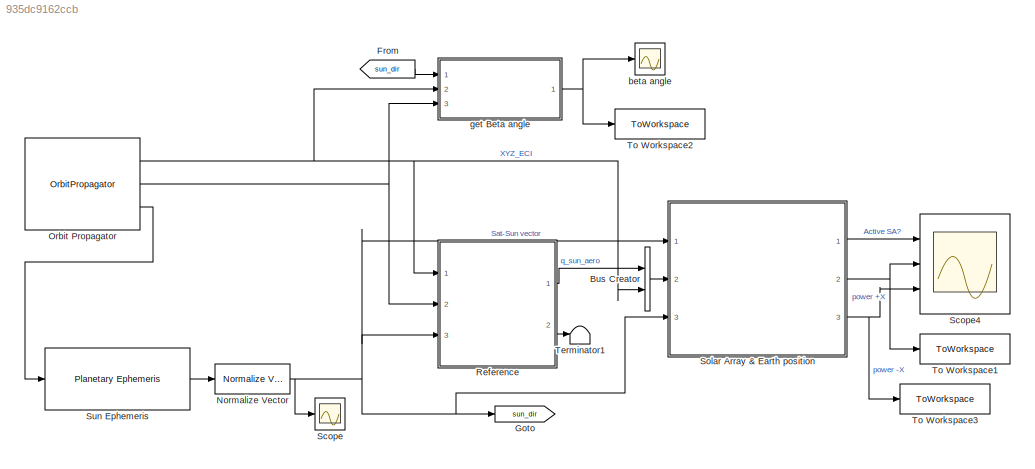
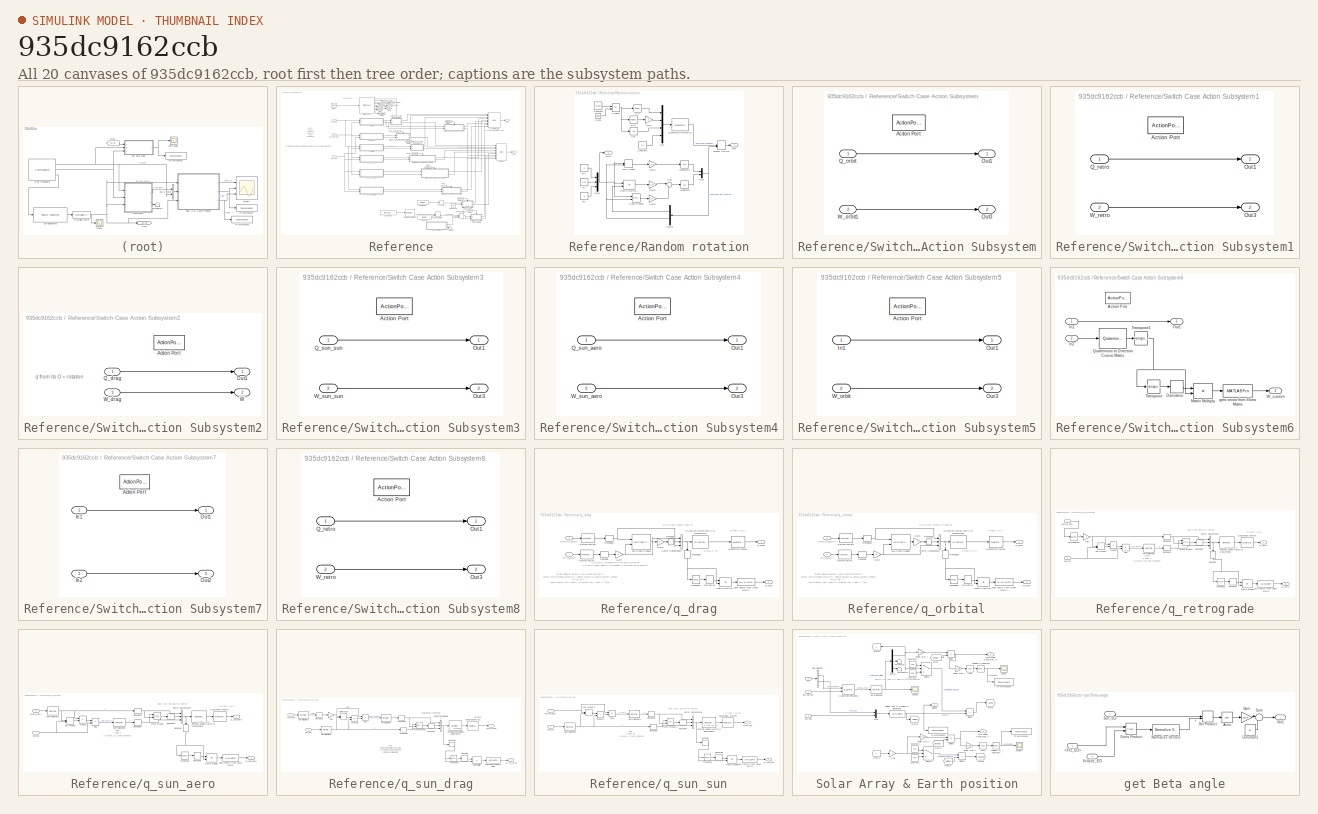
[diagram: thumbnail index - all 20 canvases of the model, root first then tree order]
MODEL slx_935dc9162ccb
KIND model
CONFIG AbsTol = auto
CONFIG EnableMultiTasking = off
CONFIG FixedStep = TimeStep
CONFIG MaxStep = auto
CONFIG MinStep = auto
CONFIG RelTol = 1e-3
CONFIG SampleTimeConstraint = Unconstrained
CONFIG SolverName = FixedStepAuto
CONFIG StartTime = 0.0
CONFIG StopTime = t_sim
BLOCK [BusCreator] Bus Creator
  DisplayOption = bar
  InheritFromInputs = on
  Inputs = 2
  Ports = [2, 1]
BLOCK [From] From
  GotoTag = sun_dir
BLOCK [Goto] Goto
  GotoTag = sun_dir
BLOCK [Reference] Normalize Vector  REF=vrlib/Utilities/Normalize Vector
  Ports = [1, 1]
  SourceBlock = vrlib/Utilities/Normalize Vector
  SourceProductBaseCode = SL
  SourceType = Normalize Vector
BLOCK [OrbitPropagator] Orbit Propagator
  AttributesFormatString = %<propagator>
  Ports = [0, 3]
  argPeriapsis = orbit.o
  customJ2 = 1.0826269e-03
  customMu = 4.305e13
  eccentricity = orbit.e
  inclination = orbit.i
  raan = orbit.O
  semiMajorAxis = orbit.a
  startDate = juliandate(date.year, date.month, date.day, date.hour, date.minutes, date.seconds)
  trueAnomaly = orbit.nu
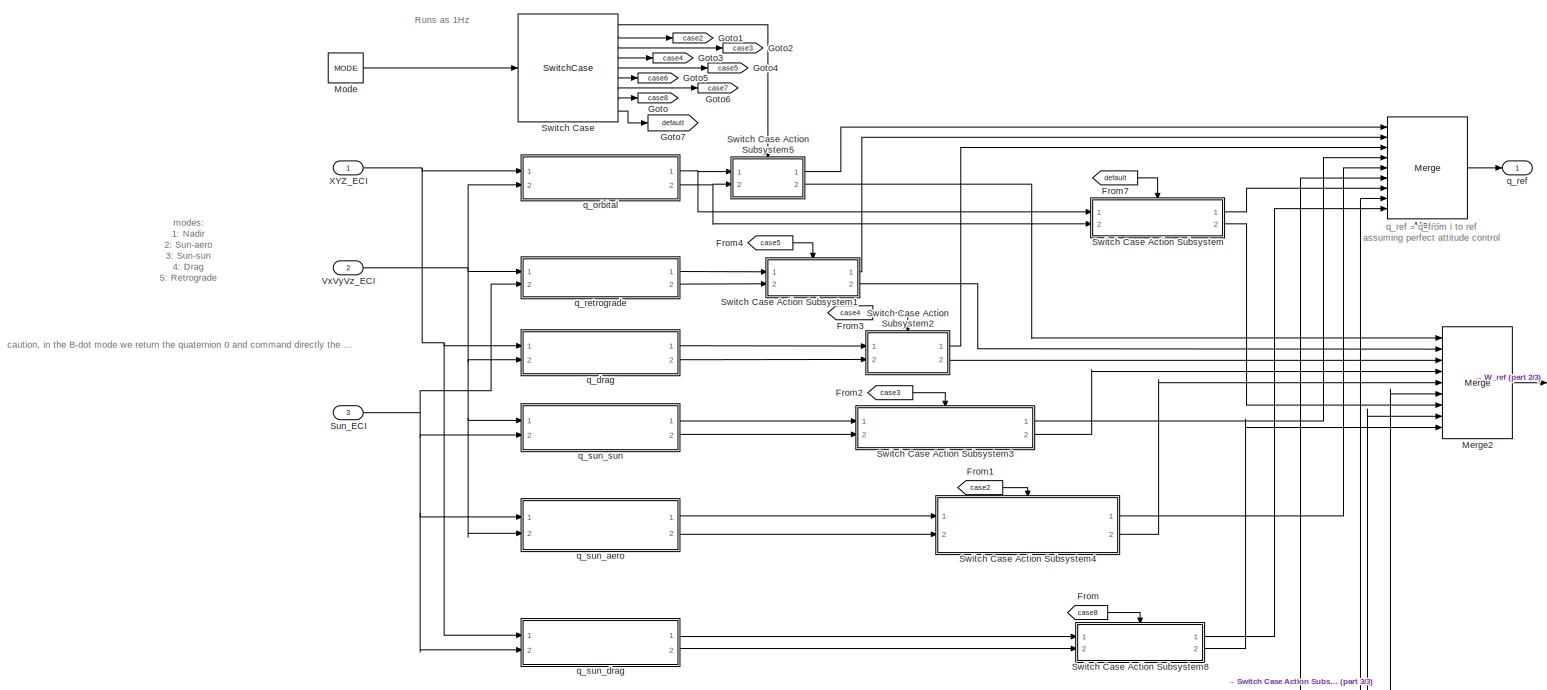
[diagram: Reference - part 1/3, full width, middle band]
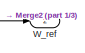
[diagram: Reference - part 2/3, middle right region]
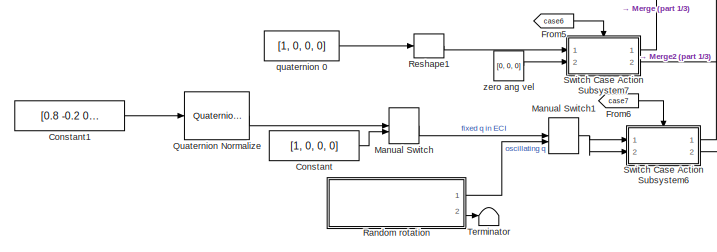
[diagram: Reference - part 3/3, bottom center region]
BLOCK [SubSystem] Reference
  Ports = [3, 2]
  RequestExecContextInheritance = off
  TreatAsAtomicUnit = on
BLOCK [Constant] Reference/Constant
  Value = [1, 0, 0, 0]
BLOCK [Constant] Reference/Constant1
  Value = [0.8 -0.2 0.1 0.5]'
BLOCK [From] Reference/From
  GotoTag = case8
BLOCK [From] Reference/From1
  GotoTag = case2
BLOCK [From] Reference/From2
  GotoTag = case3
BLOCK [From] Reference/From3
  GotoTag = case4
BLOCK [From] Reference/From4
  GotoTag = case5
BLOCK [From] Reference/From5
  GotoTag = case6
BLOCK [From] Reference/From6
  GotoTag = case7
BLOCK [From] Reference/From7
  GotoTag = default
BLOCK [Goto] Reference/Goto
  GotoTag = case8
BLOCK [Goto] Reference/Goto1
  GotoTag = case2
BLOCK [Goto] Reference/Goto2
  GotoTag = case3
BLOCK [Goto] Reference/Goto3
  GotoTag = case4
BLOCK [Goto] Reference/Goto4
  GotoTag = case5
BLOCK [Goto] Reference/Goto5
  GotoTag = case6
BLOCK [Goto] Reference/Goto6
  GotoTag = case7
BLOCK [Goto] Reference/Goto7
  GotoTag = default
BLOCK [ManualSwitch] Reference/Manual Switch
BLOCK [ManualSwitch] Reference/Manual Switch1
BLOCK [Merge] Reference/Merge
  Inputs = 9
  Ports = [9, 1]
BLOCK [Merge] Reference/Merge2
  Inputs = 9
  Ports = [9, 1]
BLOCK [Constant] Reference/Mode
  NameLocation = top
  OutDataTypeStr = int8
  Value = MODE
BLOCK [Reference] Reference/Quaternion Normalize  REF=sharedutil/Quaternion
Normalize
  Ports = [1, 1]
  SourceBlock = sharedutil/Quaternion\nNormalize
  SourceProductBaseCode = AE,PW,MT,UV,VE,VP
  SourceType = Quaternion Normalize
BLOCK [SubSystem] Reference/Random rotation
  Ports = [0, 2]
  RequestExecContextInheritance = off
BLOCK [Clock] Reference/Random rotation/Clock
  Decimation = TimeStep
BLOCK [Constant] Reference/Random rotation/Constant
  Value = 0.002
BLOCK [Constant] Reference/Random rotation/Constant1
  Value = 0.2
BLOCK [Trigonometry] Reference/Random rotation/Cos
  Operator = cos
  Ports = [1, 1]
BLOCK [Reference] Reference/Random rotation/Cross Product  REF=vrlib/Utilities/Cross Product
  Ports = [2, 1]
  SourceBlock = vrlib/Utilities/Cross Product
  SourceProductBaseCode = SL
  SourceType = Cross Product
BLOCK [Demux] Reference/Random rotation/Demux
  NameLocation = top
  Outputs = [1;3]
  Ports = [1, 2]
BLOCK [DotProduct] Reference/Random rotation/Dot Product
  OutDataTypeStr = Inherit: Inherit via internal rule
BLOCK [Gain] Reference/Random rotation/Gain
  Gain = 2
BLOCK [Gain] Reference/Random rotation/Gain1
  Gain = 0.5
BLOCK [Gain] Reference/Random rotation/Gain2
  Gain = 0.5
BLOCK [Gain] Reference/Random rotation/Gain3
  Gain = -0.5
BLOCK [Integrator] Reference/Random rotation/Integrator
  InitialCondition = [0;0;0]
  Ports = [1, 1]
BLOCK [Integrator] Reference/Random rotation/Integrator1
  InitialCondition = 1
  Ports = [1, 1]
BLOCK [ManualSwitch] Reference/Random rotation/Manual Switch
BLOCK [Product] Reference/Random rotation/Matrix Multiply
  Multiplication = Matrix(*)
  Ports = [2, 1]
BLOCK [Mux] Reference/Random rotation/Mux
  DisplayOption = bar
  Ports = [4, 1]
BLOCK [Mux] Reference/Random rotation/Mux1
  DisplayOption = bar
  Inputs = 3
  Ports = [3, 1]
BLOCK [Mux] Reference/Random rotation/Mux2
  DisplayOption = bar
  Inputs = [1;3]
  Ports = [2, 1]
BLOCK [Product] Reference/Random rotation/Product
  Ports = [2, 1]
BLOCK [Reference] Reference/Random rotation/Quaternion Normalize  REF=sharedutil/Quaternion
Normalize
  Ports = [1, 1]
  SourceBlock = sharedutil/Quaternion\nNormalize
  SourceProductBaseCode = AE,PW,MT,UV,VE,VP
  SourceType = Quaternion Normalize
BLOCK [Trigonometry] Reference/Random rotation/Sin
  Ports = [1, 1]
BLOCK [Trigonometry] Reference/Random rotation/Sin1
  Ports = [1, 1]
BLOCK [Sum] Reference/Random rotation/Sum
  Inputs = |+-
  Ports = [2, 1]
BLOCK [Outport] Reference/Random rotation/qref
BLOCK [Outport] Reference/Random rotation/wref
  Port = 2
BLOCK [Constant] Reference/Random rotation/wx
  Value = 0
BLOCK [Constant] Reference/Random rotation/wy
  Value = 0.02
BLOCK [Constant] Reference/Random rotation/wz
  Value = 0
BLOCK [Reshape] Reference/Reshape1
  OutputDimensionality = Column vector (2-D)
  Ports = [1, 1]
BLOCK [Inport] Reference/Sun_ECI
  Port = 3
BLOCK [SwitchCase] Reference/Switch Case
  CaseConditions = {1, 2, 3, 4, 5, 6, 7, 8}
  Ports = [1, 9]
BLOCK [SubSystem] Reference/Switch Case Action Subsystem
  Ports = [2, 2, 0, 0, 0, 0, 0, 1]
  RequestExecContextInheritance = off
  TreatAsAtomicUnit = on
BLOCK [ActionPort] Reference/Switch Case Action Subsystem/Action Port
  ActionPortLabel = default:
BLOCK [Outport] Reference/Switch Case Action Subsystem/Out1
  VectorParamsAs1DForOutWhenUnconnected = off
BLOCK [Outport] Reference/Switch Case Action Subsystem/Out3
  Port = 2
  VectorParamsAs1DForOutWhenUnconnected = off
BLOCK [Inport] Reference/Switch Case Action Subsystem/Q_orbit
BLOCK [Inport] Reference/Switch Case Action Subsystem/W_orbit1
  Port = 2
BLOCK [SubSystem] Reference/Switch Case Action Subsystem1
  Ports = [2, 2, 0, 0, 0, 0, 0, 1]
  RequestExecContextInheritance = off
  TreatAsAtomicUnit = on
BLOCK [ActionPort] Reference/Switch Case Action Subsystem1/Action Port
  ActionPortLabel = case [ 5 ]:
BLOCK [Outport] Reference/Switch Case Action Subsystem1/Out1
  VectorParamsAs1DForOutWhenUnconnected = off
BLOCK [Outport] Reference/Switch Case Action Subsystem1/Out3
  Port = 2
  VectorParamsAs1DForOutWhenUnconnected = off
BLOCK [Inport] Reference/Switch Case Action Subsystem1/Q_retro
BLOCK [Inport] Reference/Switch Case Action Subsystem1/W_retro
  Port = 2
BLOCK [SubSystem] Reference/Switch Case Action Subsystem2
  Ports = [2, 2, 0, 0, 0, 0, 0, 1]
  RequestExecContextInheritance = off
  TreatAsAtomicUnit = on
BLOCK [ActionPort] Reference/Switch Case Action Subsystem2/Action Port
  ActionPortLabel = case [ 4 ]:
BLOCK [Outport] Reference/Switch Case Action Subsystem2/Out1
  VectorParamsAs1DForOutWhenUnconnected = off
BLOCK [Inport] Reference/Switch Case Action Subsystem2/Q_drag
BLOCK [Outport] Reference/Switch Case Action Subsystem2/W
  Port = 2
BLOCK [Inport] Reference/Switch Case Action Subsystem2/W_drag
  Port = 2
BLOCK [SubSystem] Reference/Switch Case Action Subsystem3
  Ports = [2, 2, 0, 0, 0, 0, 0, 1]
  RequestExecContextInheritance = off
  TreatAsAtomicUnit = on
BLOCK [ActionPort] Reference/Switch Case Action Subsystem3/Action Port
  ActionPortLabel = case [ 3 ]:
BLOCK [Outport] Reference/Switch Case Action Subsystem3/Out1
  VectorParamsAs1DForOutWhenUnconnected = off
BLOCK [Outport] Reference/Switch Case Action Subsystem3/Out3
  Port = 2
  VectorParamsAs1DForOutWhenUnconnected = off
BLOCK [Inport] Reference/Switch Case Action Subsystem3/Q_sun_sun
BLOCK [Inport] Reference/Switch Case Action Subsystem3/W_sun_sun
  Port = 2
BLOCK [SubSystem] Reference/Switch Case Action Subsystem4
  Ports = [2, 2, 0, 0, 0, 0, 0, 1]
  RequestExecContextInheritance = off
  TreatAsAtomicUnit = on
BLOCK [ActionPort] Reference/Switch Case Action Subsystem4/Action Port
  ActionPortLabel = case [ 2 ]:
BLOCK [Outport] Reference/Switch Case Action Subsystem4/Out1
  VectorParamsAs1DForOutWhenUnconnected = off
BLOCK [Outport] Reference/Switch Case Action Subsystem4/Out3
  Port = 2
  VectorParamsAs1DForOutWhenUnconnected = off
BLOCK [Inport] Reference/Switch Case Action Subsystem4/Q_sun_aero
BLOCK [Inport] Reference/Switch Case Action Subsystem4/W_sun_aero
  Port = 2
BLOCK [SubSystem] Reference/Switch Case Action Subsystem5
  Ports = [2, 2, 0, 0, 0, 0, 0, 1]
  RequestExecContextInheritance = off
  TreatAsAtomicUnit = on
BLOCK [ActionPort] Reference/Switch Case Action Subsystem5/Action Port
  ActionPortLabel = case [ 1 ]:
BLOCK [Inport] Reference/Switch Case Action Subsystem5/In1
BLOCK [Outport] Reference/Switch Case Action Subsystem5/Out1
  VectorParamsAs1DForOutWhenUnconnected = off
BLOCK [Outport] Reference/Switch Case Action Subsystem5/Out3
  Port = 2
  VectorParamsAs1DForOutWhenUnconnected = off
BLOCK [Inport] Reference/Switch Case Action Subsystem5/W_orbit
  Port = 2
BLOCK [SubSystem] Reference/Switch Case Action Subsystem6
  Ports = [2, 2, 0, 0, 0, 0, 0, 1]
  RequestExecContextInheritance = off
  TreatAsAtomicUnit = on
BLOCK [ActionPort] Reference/Switch Case Action Subsystem6/Action Port
  ActionPortLabel = case [ 7 ]:
BLOCK [Derivative] Reference/Switch Case Action Subsystem6/Derivative
BLOCK [Inport] Reference/Switch Case Action Subsystem6/In1
BLOCK [Inport] Reference/Switch Case Action Subsystem6/In2
  Port = 2
BLOCK [Product] Reference/Switch Case Action Subsystem6/Matrix Multiply
  Multiplication = Matrix(*)
  Ports = [2, 1]
BLOCK [Outport] Reference/Switch Case Action Subsystem6/Out1
  VectorParamsAs1DForOutWhenUnconnected = off
BLOCK [Reference] Reference/Switch Case Action Subsystem6/Quaternions to Direction Cosine Matrix  REF=sharedtransform/Quaternions to 
Direction Cosine Matrix
  Ports = [1, 1]
  SourceBlock = sharedtransform/Quaternions to \nDirection Cosine Matrix
  SourceProductBaseCode = AE,PW,MT,UV,VE,VP
  SourceType = Quaternion2DCM
BLOCK [Math] Reference/Switch Case Action Subsystem6/Transpose
  Operator = transpose
  Ports = [1, 1]
BLOCK [Math] Reference/Switch Case Action Subsystem6/Transpose1
  Operator = transpose
  Ports = [1, 1]
BLOCK [Outport] Reference/Switch Case Action Subsystem6/W_custom
  Port = 2
BLOCK [MATLABFcn] Reference/Switch Case Action Subsystem6/gets vector from Skew Matrix
  MATLABFcn = vec_from_skew
  Ports = [1, 1]
BLOCK [SubSystem] Reference/Switch Case Action Subsystem7
  Ports = [2, 2, 0, 0, 0, 0, 0, 1]
  RequestExecContextInheritance = off
  TreatAsAtomicUnit = on
BLOCK [ActionPort] Reference/Switch Case Action Subsystem7/Action Port
  ActionPortLabel = case [ 6 ]:
BLOCK [Inport] Reference/Switch Case Action Subsystem7/In1
BLOCK [Inport] Reference/Switch Case Action Subsystem7/In2
  Port = 2
BLOCK [Outport] Reference/Switch Case Action Subsystem7/Out1
  VectorParamsAs1DForOutWhenUnconnected = off
BLOCK [Outport] Reference/Switch Case Action Subsystem7/Out2
  Port = 2
  VectorParamsAs1DForOutWhenUnconnected = off
BLOCK [SubSystem] Reference/Switch Case Action Subsystem8
  Ports = [2, 2, 0, 0, 0, 0, 0, 1]
  RequestExecContextInheritance = off
  TreatAsAtomicUnit = on
BLOCK [ActionPort] Reference/Switch Case Action Subsystem8/Action Port
  ActionPortLabel = case [ 8 ]:
BLOCK [Outport] Reference/Switch Case Action Subsystem8/Out1
  VectorParamsAs1DForOutWhenUnconnected = off
BLOCK [Outport] Reference/Switch Case Action Subsystem8/Out3
  Port = 2
  VectorParamsAs1DForOutWhenUnconnected = off
BLOCK [Inport] Reference/Switch Case Action Subsystem8/Q_retro
BLOCK [Inport] Reference/Switch Case Action Subsystem8/W_retro
  Port = 2
BLOCK [Terminator] Reference/Terminator
BLOCK [Inport] Reference/VxVyVz_ECI
  Port = 2
BLOCK [Outport] Reference/W_ref
  Port = 2
BLOCK [Inport] Reference/XYZ_ECI
BLOCK [SubSystem] Reference/q_drag
  Ports = [2, 2]
  RequestExecContextInheritance = off
BLOCK [Reference] Reference/q_drag/3x3 Cross Product  REF=sharedutil/3x3 Cross Product
  Ports = [2, 1]
  SourceBlock = sharedutil/3x3 Cross Product
  SourceProductBaseCode = AE,PW,MT,UV,VE,VP
  SourceType = CrossProduct
BLOCK [Inport] Reference/q_drag/<VxVyVz_ECI>
  Port = 2
BLOCK [Inport] Reference/q_drag/<XYZ_ECI>
BLOCK [Derivative] Reference/q_drag/Derivative
BLOCK [Reference] Reference/q_drag/Direction Cosine Matrix to Quaternions  REF=sharedtransform/Direction Cosine Matrix 
to Quaternions
  Ports = [1, 1]
  SourceBlock = sharedtransform/Direction Cosine Matrix \nto Quaternions
  SourceProductBaseCode = AE,PW,MT,UV,VE,VP
  SourceType = DCM2Quaternion
BLOCK [Gain] Reference/q_drag/Gain
BLOCK [Gain] Reference/q_drag/Gain1
BLOCK [Product] Reference/q_drag/Matrix Multiply
  Multiplication = Matrix(*)
  Ports = [2, 1]
BLOCK [Reference] Reference/q_drag/Normalization  REF=dspmathops/Normalization
  Ports = [1, 1]
  SourceBlock = dspmathops/Normalization
  SourceProductBaseCode = DS
  SourceType = Normalization
BLOCK [Reference] Reference/q_drag/Normalization1  REF=dspmathops/Normalization
  Ports = [1, 1]
  SourceBlock = dspmathops/Normalization
  SourceProductBaseCode = DS
  SourceType = Normalization
BLOCK [Outport] Reference/q_drag/Q_drag
  VectorParamsAs1DForOutWhenUnconnected = off
BLOCK [Reference] Reference/q_drag/Quaternion Inverse  REF=aerolibutil/Quaternion
Inverse
  Ports = [1, 1]
  SourceBlock = aerolibutil/Quaternion\nInverse
  SourceProductBaseCode = AE
  SourceType = Quaternion Inverse
BLOCK [Reshape] Reference/q_drag/Reshape
  OutputDimensionality = Column vector (2-D)
  Ports = [1, 1]
BLOCK [Reshape] Reference/q_drag/Reshape1
  OutputDimensionality = Column vector (2-D)
  Ports = [1, 1]
BLOCK [Reshape] Reference/q_drag/Reshape2
  OutputDimensionality = Column vector (2-D)
  Ports = [1, 1]
BLOCK [Reshape] Reference/q_drag/Reshape3
  NameLocation = left
  OutputDimensionality = Customize
  OutputDimensions = [3,3]
  Ports = [1, 1]
BLOCK [Math] Reference/q_drag/Transpose
  Operator = transpose
  Ports = [1, 1]
BLOCK [Concatenate] Reference/q_drag/Vector Concatenate
  ConcatenateDimension = 2
  Mode = Multidimensional array
  NumInputs = 3
  Ports = [3, 1]
BLOCK [Outport] Reference/q_drag/W_drag
  Port = 2
BLOCK [MATLABFcn] Reference/q_drag/gets vector from Skew Matrix
  MATLABFcn = vec_from_skew
  Ports = [1, 1]
BLOCK [SubSystem] Reference/q_orbital
  Ports = [2, 2]
  RequestExecContextInheritance = off
BLOCK [Reference] Reference/q_orbital/3x3 Cross Product  REF=sharedutil/3x3 Cross Product
  Ports = [2, 1]
  SourceBlock = sharedutil/3x3 Cross Product
  SourceProductBaseCode = AE,PW,MT,UV,VE,VP
  SourceType = CrossProduct
BLOCK [Inport] Reference/q_orbital/<VxVyVz_ECI>
  Port = 2
BLOCK [Inport] Reference/q_orbital/<XYZ_ECI>
BLOCK [Derivative] Reference/q_orbital/Derivative
BLOCK [Reference] Reference/q_orbital/Direction Cosine Matrix to Quaternions  REF=sharedtransform/Direction Cosine Matrix 
to Quaternions
  Ports = [1, 1]
  SourceBlock = sharedtransform/Direction Cosine Matrix \nto Quaternions
  SourceProductBaseCode = AE,PW,MT,UV,VE,VP
  SourceType = DCM2Quaternion
BLOCK [Gain] Reference/q_orbital/Gain
BLOCK [Gain] Reference/q_orbital/Gain1
  Gain = -1
BLOCK [Product] Reference/q_orbital/Matrix Multiply
  Multiplication = Matrix(*)
  Ports = [2, 1]
BLOCK [Reference] Reference/q_orbital/Normalization  REF=dspmathops/Normalization
  Ports = [1, 1]
  SourceBlock = dspmathops/Normalization
  SourceProductBaseCode = DS
  SourceType = Normalization
BLOCK [Reference] Reference/q_orbital/Normalization1  REF=dspmathops/Normalization
  Ports = [1, 1]
  SourceBlock = dspmathops/Normalization
  SourceProductBaseCode = DS
  SourceType = Normalization
BLOCK [Outport] Reference/q_orbital/Q_orbit
  VectorParamsAs1DForOutWhenUnconnected = off
BLOCK [Reference] Reference/q_orbital/Quaternion Inverse  REF=aerolibutil/Quaternion
Inverse
  Ports = [1, 1]
  SourceBlock = aerolibutil/Quaternion\nInverse
  SourceProductBaseCode = AE
  SourceType = Quaternion Inverse
BLOCK [Reshape] Reference/q_orbital/Reshape
  OutputDimensionality = Column vector (2-D)
  Ports = [1, 1]
BLOCK [Reshape] Reference/q_orbital/Reshape1
  OutputDimensionality = Column vector (2-D)
  Ports = [1, 1]
BLOCK [Reshape] Reference/q_orbital/Reshape2
  OutputDimensionality = Column vector (2-D)
  Ports = [1, 1]
BLOCK [Reshape] Reference/q_orbital/Reshape3
  NameLocation = left
  OutputDimensionality = Customize
  OutputDimensions = [3,3]
  Ports = [1, 1]
BLOCK [Math] Reference/q_orbital/Transpose
  Operator = transpose
  Ports = [1, 1]
BLOCK [Concatenate] Reference/q_orbital/Vector Concatenate
  ConcatenateDimension = 2
  Mode = Multidimensional array
  NumInputs = 3
  Ports = [3, 1]
BLOCK [Outport] Reference/q_orbital/W_orbit
  Port = 2
BLOCK [MATLABFcn] Reference/q_orbital/gets vector from Skew Matrix
  MATLABFcn = vec_from_skew
  Ports = [1, 1]
BLOCK [Outport] Reference/q_ref
  VectorParamsAs1DForOutWhenUnconnected = off
BLOCK [SubSystem] Reference/q_retrograde
  Ports = [2, 2]
  RequestExecContextInheritance = off
BLOCK [Inport] Reference/q_retrograde/<VxVyVz_ECI>
BLOCK [Reference] Reference/q_retrograde/Cross Product  REF=vrlib/Utilities/Cross Product
  Ports = [2, 1]
  SourceBlock = vrlib/Utilities/Cross Product
  SourceProductBaseCode = SL
  SourceType = Cross Product
BLOCK [Derivative] Reference/q_retrograde/Derivative
BLOCK [Reference] Reference/q_retrograde/Direction Cosine Matrix to Quaternions  REF=sharedtransform/Direction Cosine Matrix 
to Quaternions
  Ports = [1, 1]
  SourceBlock = sharedtransform/Direction Cosine Matrix \nto Quaternions
  SourceProductBaseCode = AE,PW,MT,UV,VE,VP
  SourceType = DCM2Quaternion
BLOCK [DotProduct] Reference/q_retrograde/Dot Product
  OutDataTypeStr = Inherit: Inherit via internal rule
BLOCK [Gain] Reference/q_retrograde/Gain
  Gain = -1
BLOCK [Product] Reference/q_retrograde/Matrix Multiply
  Multiplication = Matrix(*)
  Ports = [2, 1]
BLOCK [Reference] Reference/q_retrograde/Normalization1  REF=dspmathops/Normalization
  Ports = [1, 1]
  SourceBlock = dspmathops/Normalization
  SourceProductBaseCode = DS
  SourceType = Normalization
BLOCK [Reference] Reference/q_retrograde/Normalization2  REF=dspmathops/Normalization
  Ports = [1, 1]
  SourceBlock = dspmathops/Normalization
  SourceProductBaseCode = DS
  SourceType = Normalization
BLOCK [Sum] Reference/q_retrograde/Plus
  IconShape = rectangular
  Inputs = -+
  Ports = [2, 1]
BLOCK [Product] Reference/q_retrograde/Product
  Ports = [2, 1]
BLOCK [Outport] Reference/q_retrograde/Q_retro
  VectorParamsAs1DForOutWhenUnconnected = off
BLOCK [Reference] Reference/q_retrograde/Quaternion Inverse  REF=aerolibutil/Quaternion
Inverse
  Ports = [1, 1]
  SourceBlock = aerolibutil/Quaternion\nInverse
  SourceProductBaseCode = AE
  SourceType = Quaternion Inverse
BLOCK [Reshape] Reference/q_retrograde/Reshape
  NameLocation = left
  OutputDimensionality = Customize
  OutputDimensions = [3,3]
  Ports = [1, 1]
BLOCK [Reshape] Reference/q_retrograde/Reshape1
  OutputDimensionality = Column vector (2-D)
  Ports = [1, 1]
BLOCK [Reshape] Reference/q_retrograde/Reshape2
  OutputDimensionality = Column vector (2-D)
  Ports = [1, 1]
BLOCK [Reshape] Reference/q_retrograde/Reshape3
  OutputDimensionality = Column vector (2-D)
  Ports = [1, 1]
BLOCK [Inport] Reference/q_retrograde/Sun_ECI
  Port = 2
BLOCK [Math] Reference/q_retrograde/Transpose
  Operator = transpose
  Ports = [1, 1]
BLOCK [Concatenate] Reference/q_retrograde/Vector Concatenate
  ConcatenateDimension = 2
  Mode = Multidimensional array
  NumInputs = 3
  Ports = [3, 1]
BLOCK [Outport] Reference/q_retrograde/W_retro
  Port = 2
BLOCK [MATLABFcn] Reference/q_retrograde/gets vector from Skew Matrix
  MATLABFcn = vec_from_skew
  Ports = [1, 1]
BLOCK [SubSystem] Reference/q_sun_aero
  Ports = [2, 2]
  RequestExecContextInheritance = off
BLOCK [Inport] Reference/q_sun_aero/<VxVyVz_ECI>
  Port = 2
BLOCK [Reference] Reference/q_sun_aero/Cross Product  REF=vrlib/Utilities/Cross Product
  Ports = [2, 1]
  SourceBlock = vrlib/Utilities/Cross Product
  SourceProductBaseCode = SL
  SourceType = Cross Product
BLOCK [Derivative] Reference/q_sun_aero/Derivative
BLOCK [Reference] Reference/q_sun_aero/Direction Cosine Matrix to Quaternions  REF=sharedtransform/Direction Cosine Matrix 
to Quaternions
  Ports = [1, 1]
  SourceBlock = sharedtransform/Direction Cosine Matrix \nto Quaternions
  SourceProductBaseCode = AE,PW,MT,UV,VE,VP
  SourceType = DCM2Quaternion
BLOCK [DotProduct] Reference/q_sun_aero/Dot Product
  OutDataTypeStr = Inherit: Inherit via internal rule
BLOCK [Product] Reference/q_sun_aero/Matrix Multiply
  Multiplication = Matrix(*)
  Ports = [2, 1]
BLOCK [Reference] Reference/q_sun_aero/Normalization1  REF=dspmathops/Normalization
  Ports = [1, 1]
  SourceBlock = dspmathops/Normalization
  SourceProductBaseCode = DS
  SourceType = Normalization
BLOCK [Reference] Reference/q_sun_aero/Normalization2  REF=dspmathops/Normalization
  Ports = [1, 1]
  SourceBlock = dspmathops/Normalization
  SourceProductBaseCode = DS
  SourceType = Normalization
BLOCK [Sum] Reference/q_sun_aero/Plus
  IconShape = rectangular
  Inputs = -+
  Ports = [2, 1]
BLOCK [Product] Reference/q_sun_aero/Product
  Ports = [2, 1]
BLOCK [Outport] Reference/q_sun_aero/Q_sun_aero
  VectorParamsAs1DForOutWhenUnconnected = off
BLOCK [Reference] Reference/q_sun_aero/Quaternion Inverse  REF=aerolibutil/Quaternion
Inverse
  Ports = [1, 1]
  SourceBlock = aerolibutil/Quaternion\nInverse
  SourceProductBaseCode = AE
  SourceType = Quaternion Inverse
BLOCK [Reshape] Reference/q_sun_aero/Reshape
  NameLocation = left
  OutputDimensionality = Customize
  OutputDimensions = [3,3]
  Ports = [1, 1]
BLOCK [Reshape] Reference/q_sun_aero/Reshape1
  OutputDimensionality = Column vector (2-D)
  Ports = [1, 1]
BLOCK [Reshape] Reference/q_sun_aero/Reshape2
  OutputDimensionality = Column vector (2-D)
  Ports = [1, 1]
BLOCK [Reshape] Reference/q_sun_aero/Reshape3
  OutputDimensionality = Column vector (2-D)
  Ports = [1, 1]
BLOCK [Inport] Reference/q_sun_aero/Sun_ECI
BLOCK [Math] Reference/q_sun_aero/Transpose
  Operator = transpose
  Ports = [1, 1]
BLOCK [Concatenate] Reference/q_sun_aero/Vector Concatenate
  ConcatenateDimension = 2
  Mode = Multidimensional array
  NumInputs = 3
  Ports = [3, 1]
BLOCK [Outport] Reference/q_sun_aero/W_sun_aero
  Port = 2
BLOCK [MATLABFcn] Reference/q_sun_aero/gets vector from Skew Matrix
  MATLABFcn = vec_from_skew
  Ports = [1, 1]
BLOCK [SubSystem] Reference/q_sun_drag
  Ports = [2, 2]
  RequestExecContextInheritance = off
BLOCK [Inport] Reference/q_sun_drag/<XYZ_ECI>
BLOCK [Reference] Reference/q_sun_drag/Cross Product1  REF=vrlib/Utilities/Cross Product
  Ports = [2, 1]
  SourceBlock = vrlib/Utilities/Cross Product
  SourceProductBaseCode = SL
  SourceType = Cross Product
BLOCK [Derivative] Reference/q_sun_drag/Derivative
BLOCK [Reference] Reference/q_sun_drag/Direction Cosine Matrix to Quaternions1  REF=sharedtransform/Direction Cosine Matrix 
to Quaternions
  Ports = [1, 1]
  SourceBlock = sharedtransform/Direction Cosine Matrix \nto Quaternions
  SourceProductBaseCode = AE,PW,MT,UV,VE,VP
  SourceType = DCM2Quaternion
BLOCK [DotProduct] Reference/q_sun_drag/Dot Product1
  OutDataTypeStr = Inherit: Inherit via internal rule
BLOCK [Gain] Reference/q_sun_drag/Gain
  Gain = -1
BLOCK [Product] Reference/q_sun_drag/Matrix Multiply
  Multiplication = Matrix(*)
  Ports = [2, 1]
BLOCK [Reference] Reference/q_sun_drag/Normalization1  REF=dspmathops/Normalization
  Ports = [1, 1]
  SourceBlock = dspmathops/Normalization
  SourceProductBaseCode = DS
  SourceType = Normalization
BLOCK [Reference] Reference/q_sun_drag/Normalization3  REF=dspmathops/Normalization
  Ports = [1, 1]
  SourceBlock = dspmathops/Normalization
  SourceProductBaseCode = DS
  SourceType = Normalization
BLOCK [Reference] Reference/q_sun_drag/Normalization4  REF=dspmathops/Normalization
  Ports = [1, 1]
  SourceBlock = dspmathops/Normalization
  SourceProductBaseCode = DS
  SourceType = Normalization
BLOCK [Sum] Reference/q_sun_drag/Plus1
  IconShape = rectangular
  Inputs = -+
  Ports = [2, 1]
BLOCK [Product] Reference/q_sun_drag/Product1
  Ports = [2, 1]
BLOCK [Outport] Reference/q_sun_drag/Q_sun_drag
  VectorParamsAs1DForOutWhenUnconnected = off
BLOCK [Reference] Reference/q_sun_drag/Quaternion Inverse1  REF=aerolibutil/Quaternion
Inverse
  Ports = [1, 1]
  SourceBlock = aerolibutil/Quaternion\nInverse
  SourceProductBaseCode = AE
  SourceType = Quaternion Inverse
BLOCK [Reshape] Reference/q_sun_drag/Reshape
  OutputDimensionality = Customize
  OutputDimensions = [3,3]
  Ports = [1, 1]
BLOCK [Reshape] Reference/q_sun_drag/Reshape1
  OutputDimensionality = Column vector (2-D)
  Ports = [1, 1]
BLOCK [Reshape] Reference/q_sun_drag/Reshape4
  OutputDimensionality = Column vector (2-D)
  Ports = [1, 1]
BLOCK [Reshape] Reference/q_sun_drag/Reshape5
  OutputDimensionality = Column vector (2-D)
  Ports = [1, 1]
BLOCK [Reshape] Reference/q_sun_drag/Reshape6
  OutputDimensionality = Column vector (2-D)
  Ports = [1, 1]
BLOCK [Inport] Reference/q_sun_drag/Sun_ECI
  Port = 2
BLOCK [Math] Reference/q_sun_drag/Transpose
  Operator = transpose
  Ports = [1, 1]
BLOCK [Concatenate] Reference/q_sun_drag/Vector Concatenate1
  ConcatenateDimension = 2
  Mode = Multidimensional array
  NumInputs = 3
  Ports = [3, 1]
BLOCK [Outport] Reference/q_sun_drag/W_sun_drag
  Port = 2
BLOCK [MATLABFcn] Reference/q_sun_drag/gets vector from Skew Matrix
  MATLABFcn = vec_from_skew
  Ports = [1, 1]
BLOCK [SubSystem] Reference/q_sun_sun
  Ports = [2, 2]
  RequestExecContextInheritance = off
BLOCK [Inport] Reference/q_sun_sun/<VxVyVz_ECI>
BLOCK [Reference] Reference/q_sun_sun/Cross Product1  REF=vrlib/Utilities/Cross Product
  Ports = [2, 1]
  SourceBlock = vrlib/Utilities/Cross Product
  SourceProductBaseCode = SL
  SourceType = Cross Product
BLOCK [Derivative] Reference/q_sun_sun/Derivative
BLOCK [Reference] Reference/q_sun_sun/Direction Cosine Matrix to Quaternions1  REF=sharedtransform/Direction Cosine Matrix 
to Quaternions
  Ports = [1, 1]
  SourceBlock = sharedtransform/Direction Cosine Matrix \nto Quaternions
  SourceProductBaseCode = AE,PW,MT,UV,VE,VP
  SourceType = DCM2Quaternion
BLOCK [DotProduct] Reference/q_sun_sun/Dot Product1
  OutDataTypeStr = Inherit: Inherit via internal rule
BLOCK [Product] Reference/q_sun_sun/Matrix Multiply
  Multiplication = Matrix(*)
  Ports = [2, 1]
BLOCK [Reference] Reference/q_sun_sun/Normalization3  REF=dspmathops/Normalization
  Ports = [1, 1]
  SourceBlock = dspmathops/Normalization
  SourceProductBaseCode = DS
  SourceType = Normalization
BLOCK [Reference] Reference/q_sun_sun/Normalization4  REF=dspmathops/Normalization
  Ports = [1, 1]
  SourceBlock = dspmathops/Normalization
  SourceProductBaseCode = DS
  SourceType = Normalization
BLOCK [Sum] Reference/q_sun_sun/Plus1
  IconShape = rectangular
  Inputs = -+
  Ports = [2, 1]
BLOCK [Product] Reference/q_sun_sun/Product1
  Ports = [2, 1]
BLOCK [Outport] Reference/q_sun_sun/Q_sun_sun
  VectorParamsAs1DForOutWhenUnconnected = off
BLOCK [Reference] Reference/q_sun_sun/Quaternion Inverse1  REF=aerolibutil/Quaternion
Inverse
  Ports = [1, 1]
  SourceBlock = aerolibutil/Quaternion\nInverse
  SourceProductBaseCode = AE
  SourceType = Quaternion Inverse
BLOCK [Reshape] Reference/q_sun_sun/Reshape
  OutputDimensionality = Customize
  OutputDimensions = [3,3]
  Ports = [1, 1]
BLOCK [Reshape] Reference/q_sun_sun/Reshape4
  OutputDimensionality = Column vector (2-D)
  Ports = [1, 1]
BLOCK [Reshape] Reference/q_sun_sun/Reshape5
  OutputDimensionality = Column vector (2-D)
  Ports = [1, 1]
BLOCK [Reshape] Reference/q_sun_sun/Reshape6
  OutputDimensionality = Column vector (2-D)
  Ports = [1, 1]
BLOCK [Inport] Reference/q_sun_sun/Sun_ECI
  Port = 2
BLOCK [Math] Reference/q_sun_sun/Transpose
  Operator = transpose
  Ports = [1, 1]
BLOCK [Concatenate] Reference/q_sun_sun/Vector Concatenate1
  ConcatenateDimension = 2
  Mode = Multidimensional array
  NumInputs = 3
  Ports = [3, 1]
BLOCK [Outport] Reference/q_sun_sun/W_sun_sun
  Port = 2
BLOCK [MATLABFcn] Reference/q_sun_sun/gets vector from Skew Matrix
  MATLABFcn = vec_from_skew
  Ports = [1, 1]
BLOCK [Constant] Reference/quaternion 0
  Value = [1, 0, 0, 0]
BLOCK [Constant] Reference/zero ang vel
  Value = [0, 0, 0]
BLOCK [Scope] Scope
  Floating = off
  NumInputPorts = 1
  Ports = [1]
  ScopeSpecificationString = Simulink.scopes.TimeScopeBlockCfg('CurrentConfiguration', extmgr.ConfigurationSet(extmgr.Configuration('Core','General UI',true),extmgr.Configuration('Core','Source UI',true),extmgr.Configuration('Sources','WiredSimulink',true,'DataLoggingVariableName','ScopeData1'),extmgr.Configuration('Visuals','Time Domain',true,'SerializedDisplays',{struct('MinYLimReal','-0.125','MaxYLimReal','1.125','YLabelRe...<+1606ch>
BLOCK [Scope] Scope4
  Floating = off
  NumInputPorts = 3
  Ports = [3]
  ScopeSpecificationString = Simulink.scopes.TimeScopeBlockCfg('CurrentConfiguration', extmgr.ConfigurationSet(extmgr.Configuration('Core','General UI',true),extmgr.Configuration('Core','Source UI',true),extmgr.Configuration('Sources','WiredSimulink',true,'DataLoggingVariableName','ScopeData4'),extmgr.Configuration('Visuals','Time Domain',true,'SerializedDisplays',{struct('MinYLimReal','-0.125','MaxYLimReal','1.125','YLabelRe...<+2849ch>
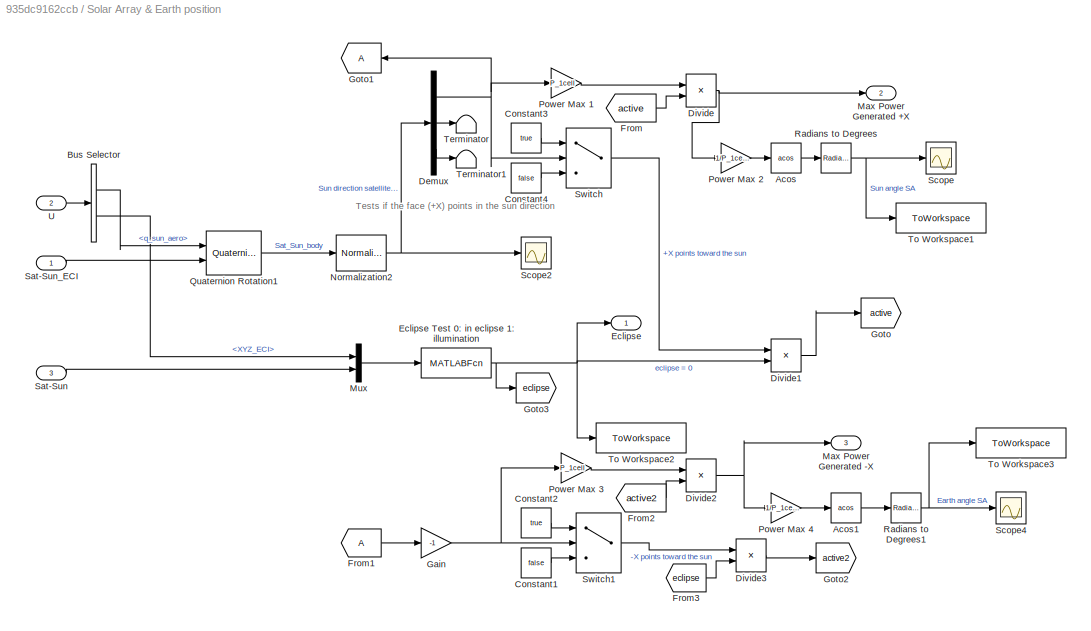
BLOCK [SubSystem] Solar Array & Earth position
  Ports = [3, 3]
  RequestExecContextInheritance = off
BLOCK [Trigonometry] Solar Array & Earth position/Acos
  Operator = acos
  Ports = [1, 1]
BLOCK [Trigonometry] Solar Array & Earth position/Acos1
  Operator = acos
  Ports = [1, 1]
BLOCK [BusSelector] Solar Array & Earth position/Bus Selector
  OutputSignals = q_sun_aero,XYZ_ECI
  Ports = [1, 2]
BLOCK [Constant] Solar Array & Earth position/Constant1
  Value = false
BLOCK [Constant] Solar Array & Earth position/Constant2
  Value = true
BLOCK [Constant] Solar Array & Earth position/Constant3
  Value = true
BLOCK [Constant] Solar Array & Earth position/Constant4
  Value = false
BLOCK [Demux] Solar Array & Earth position/Demux
  Outputs = 3
  Ports = [1, 3]
BLOCK [Product] Solar Array & Earth position/Divide
  Inputs = **
  Ports = [2, 1]
BLOCK [Product] Solar Array & Earth position/Divide1
  Inputs = **
  Ports = [2, 1]
BLOCK [Product] Solar Array & Earth position/Divide2
  Inputs = **
  Ports = [2, 1]
BLOCK [Product] Solar Array & Earth position/Divide3
  Inputs = **
  Ports = [2, 1]
BLOCK [Outport] Solar Array & Earth position/Eclipse
  VectorParamsAs1DForOutWhenUnconnected = off
BLOCK [MATLABFcn] Solar Array & Earth position/Eclipse Test 0: in eclipse 1: illumination
  MATLABFcn = eclipse_check
  Ports = [1, 1]
BLOCK [From] Solar Array & Earth position/From
  GotoTag = active
BLOCK [From] Solar Array & Earth position/From1
BLOCK [From] Solar Array & Earth position/From2
  GotoTag = active2
BLOCK [From] Solar Array & Earth position/From3
  GotoTag = eclipse
BLOCK [Gain] Solar Array & Earth position/Gain
  Gain = -1
BLOCK [Goto] Solar Array & Earth position/Goto
  GotoTag = active
BLOCK [Goto] Solar Array & Earth position/Goto1
  NameLocation = top
BLOCK [Goto] Solar Array & Earth position/Goto2
  GotoTag = active2
BLOCK [Goto] Solar Array & Earth position/Goto3
  GotoTag = eclipse
BLOCK [Outport] Solar Array & Earth position/Max Power Generated +X
  Port = 2
BLOCK [Outport] Solar Array & Earth position/Max Power Generated -X
  Port = 3
BLOCK [Mux] Solar Array & Earth position/Mux
  DisplayOption = bar
  Inputs = 2
  Ports = [2, 1]
BLOCK [Reference] Solar Array & Earth position/Normalization2  REF=dspmathops/Normalization
  Ports = [1, 1]
  SourceBlock = dspmathops/Normalization
  SourceProductBaseCode = DS
  SourceType = Normalization
BLOCK [Gain] Solar Array & Earth position/Power Max 1
  Gain = P_1cell
BLOCK [Gain] Solar Array & Earth position/Power Max 2
  Gain = 1/P_1cell
BLOCK [Gain] Solar Array & Earth position/Power Max 3
  Gain = P_1cell
BLOCK [Gain] Solar Array & Earth position/Power Max 4
  Gain = 1/P_1cell
BLOCK [Reference] Solar Array & Earth position/Quaternion Rotation1  REF=aerolibutil/Quaternion
Rotation
  Ports = [2, 1]
  SourceBlock = aerolibutil/Quaternion\nRotation
  SourceProductBaseCode = AE
  SourceType = Quaternion Rotation
BLOCK [Reference] Solar Array & Earth position/Radians to Degrees  REF=simulink_extras/Transformations/Radians
to Degrees
  Ports = [1, 1]
  SourceBlock = simulink_extras/Transformations/Radians\nto Degrees
  SourceProductBaseCode = SL
  SourceType = RadiansToDegrees
BLOCK [Reference] Solar Array & Earth position/Radians to Degrees1  REF=simulink_extras/Transformations/Radians
to Degrees
  Ports = [1, 1]
  SourceBlock = simulink_extras/Transformations/Radians\nto Degrees
  SourceProductBaseCode = SL
  SourceType = RadiansToDegrees
BLOCK [Inport] Solar Array & Earth position/Sat-Sun
  Port = 3
BLOCK [Inport] Solar Array & Earth position/Sat-Sun_ECI
BLOCK [Scope] Solar Array & Earth position/Scope
  Floating = off
  NumInputPorts = 1
  Ports = [1]
  ScopeSpecificationString = Simulink.scopes.TimeScopeBlockCfg('CurrentConfiguration', extmgr.ConfigurationSet(extmgr.Configuration('Core','General UI',true),extmgr.Configuration('Core','Source UI',true),extmgr.Configuration('Sources','WiredSimulink',true,'DataLoggingVariableName','ScopeData2'),extmgr.Configuration('Visuals','Time Domain',true,'SerializedDisplays',{struct('MinYLimReal','-9.85656','MaxYLimReal','101.09517','YL...<+1415ch>
BLOCK [Scope] Solar Array & Earth position/Scope2
  Floating = off
  NumInputPorts = 1
  Ports = [1]
  ScopeSpecificationString = Simulink.scopes.TimeScopeBlockCfg('CurrentConfiguration', extmgr.ConfigurationSet(extmgr.Configuration('Core','General UI',true),extmgr.Configuration('Core','Source UI',true),extmgr.Configuration('Sources','WiredSimulink',true,'DataLoggingVariableName','ScopeData4'),extmgr.Configuration('Visuals','Time Domain',true,'SerializedDisplays',{struct('MinYLimReal','-1.24976','MaxYLimReal','1.24997','YLab...<+1535ch>
BLOCK [Scope] Solar Array & Earth position/Scope4
  Floating = off
  NumInputPorts = 1
  Ports = [1]
  ScopeSpecificationString = Simulink.scopes.TimeScopeBlockCfg('CurrentConfiguration', extmgr.ConfigurationSet(extmgr.Configuration('Core','General UI',true),extmgr.Configuration('Core','Source UI',true),extmgr.Configuration('Sources','WiredSimulink',true,'DataLoggingVariableName','ScopeData2'),extmgr.Configuration('Visuals','Time Domain',true,'SerializedDisplays',{struct('MinYLimReal','-9.9055','MaxYLimReal','101.10061','YLa...<+1415ch>
BLOCK [Switch] Solar Array & Earth position/Switch
  Criteria = u2 > Threshold
  InputSameDT = off
  SaturateOnIntegerOverflow = off
BLOCK [Switch] Solar Array & Earth position/Switch1
  Criteria = u2 > Threshold
  InputSameDT = off
  SaturateOnIntegerOverflow = off
BLOCK [Terminator] Solar Array & Earth position/Terminator
BLOCK [Terminator] Solar Array & Earth position/Terminator1
BLOCK [ToWorkspace] Solar Array & Earth position/To Workspace1
  FixptAsFi = on
  MaxDataPoints = inf
  Ports = [1]
  SampleTime = -1
  SaveFormat = Timeseries
  VariableName = angle1
BLOCK [ToWorkspace] Solar Array & Earth position/To Workspace2
  FixptAsFi = on
  MaxDataPoints = inf
  Ports = [1]
  SampleTime = -1
  SaveFormat = Timeseries
  VariableName = eclipse
BLOCK [ToWorkspace] Solar Array & Earth position/To Workspace3
  FixptAsFi = on
  MaxDataPoints = inf
  Ports = [1]
  SampleTime = -1
  SaveFormat = Timeseries
  VariableName = angle2
BLOCK [Inport] Solar Array & Earth position/U
  Port = 2
BLOCK [Reference] Sun Ephemeris  REF=aerolibcelestial/Planetary Ephemeris
  Ports = [1, 1]
  SourceBlock = aerolibcelestial/Planetary Ephemeris
  SourceProductBaseCode = AE
  SourceType = PlanetaryEphemeris
BLOCK [Terminator] Terminator1
BLOCK [ToWorkspace] To Workspace1
  FixptAsFi = on
  MaxDataPoints = inf
  Ports = [1]
  SampleTime = -1
  SaveFormat = Timeseries
  VariableName = PcellX1
BLOCK [ToWorkspace] To Workspace2
  FixptAsFi = on
  MaxDataPoints = inf
  Ports = [1]
  SampleTime = -1
  SaveFormat = Timeseries
  VariableName = beta
BLOCK [ToWorkspace] To Workspace3
  FixptAsFi = on
  MaxDataPoints = inf
  Ports = [1]
  SampleTime = -1
  SaveFormat = Timeseries
  VariableName = PcellX2
BLOCK [Scope] beta angle
  Floating = off
  NumInputPorts = 1
  Ports = [1]
  ScopeSpecificationString = Simulink.scopes.TimeScopeBlockCfg('CurrentConfiguration', extmgr.ConfigurationSet(extmgr.Configuration('Core','General UI',true),extmgr.Configuration('Core','Source UI',true),extmgr.Configuration('Sources','WiredSimulink',true,'DataLoggingVariableName','ScopeData5'),extmgr.Configuration('Visuals','Time Domain',true,'SerializedDisplays',{struct('MinYLimReal','-1.31349','MaxYLimReal','-1.16543','YLa...<+1454ch>
BLOCK [SubSystem] get Beta angle
  Ports = [3, 1]
  RequestExecContextInheritance = off
BLOCK [Inport] get Beta angle/<XYZ_ECI>
  Port = 2
BLOCK [Trigonometry] get Beta angle/Acos
  Operator = acos
  Ports = [1, 1]
BLOCK [Constant] get Beta angle/Constant1
  Value = 90
BLOCK [Reference] get Beta angle/Cross Product  REF=vrlib/Utilities/Cross Product
  Ports = [2, 1]
  SourceBlock = vrlib/Utilities/Cross Product
  SourceProductBaseCode = SL
  SourceType = Cross Product
BLOCK [DotProduct] get Beta angle/Dot Product
  OutDataTypeStr = Inherit: Inherit via internal rule
BLOCK [Gain] get Beta angle/Gain
  Gain = 180/pi
BLOCK [Reference] get Beta angle/Normalize Vector2  REF=vrlib/Utilities/Normalize Vector
  Ports = [1, 1]
  SourceBlock = vrlib/Utilities/Normalize Vector
  SourceProductBaseCode = SL
  SourceType = Normalize Vector
BLOCK [Outport] get Beta angle/Out1
BLOCK [Sum] get Beta angle/Sum
  Inputs = |-+
  Ports = [2, 1]
BLOCK [Inport] get Beta angle/Sun_ECI
BLOCK [Inport] get Beta angle/VxVyVz_ECI
  Port = 3
ANNOTATION Reference: caution, in the B-dot mode we return the quaternion 0 and command directly the magnetotorquers
ANNOTATION Reference: modes : 1: Nadir 2: Sun-aero 3: Sun-sun 4: Drag 5: Retrograde 6: B-dot 7: Custom Default: nadir
ANNOTATION Reference: Runs as 1Hz
ANNOTATION Reference: q_ref = q_from i to ref assuming perfect attitude control
ANNOTATION Reference/Switch Case Action Subsystem2: q from I to O + rotation
ANNOTATION Reference/q_drag: To get angular velocity from Rotation matrix: https://en.wikipedia.org/wiki/Angular_velocity#Angular_velocity_tensor W= dA/dt * A' $W=\frac{dA}{dt} {\dot} A'=\frac{dA}{dt} {\dot} A^{T}$
ANNOTATION Reference/q_drag: DCM from Drag to Inertial
ANNOTATION Reference/q_drag: q from D to I
ANNOTATION Reference/q_drag: q from I to D
ANNOTATION Reference/q_drag: x in BRF is aligned with the zenith direction z in BRF (solar panels) is aligned in the direction of velocity
ANNOTATION Reference/q_orbital: To get angular velocity from Rotation matrix: https://en.wikipedia.org/wiki/Angular_velocity#Angular_velocity_tensor W= dA/dt * A' $W=\frac{dA}{dt} {\dot} A'=\frac{dA}{dt} {\dot} A^{T}$
ANNOTATION Reference/q_orbital: DCM from Orbital to Inertial
ANNOTATION Reference/q_orbital: q from I to O
ANNOTATION Reference/q_orbital: q from O to I
ANNOTATION Reference/q_retrograde: choix : x selon V z tel que z.GS soit maximisé
ANNOTATION Reference/q_retrograde: DCM from Retro to Inertial
ANNOTATION Reference/q_retrograde: q from I to R
ANNOTATION Reference/q_retrograde: q from R to I
ANNOTATION Reference/q_sun_aero: choix : x selon V z tel que z.GS soit maximisé
ANNOTATION Reference/q_sun_aero: DCM from Sun-aero to Inertial
ANNOTATION Reference/q_sun_aero: q from I to S
ANNOTATION Reference/q_sun_aero: q from S to I
ANNOTATION Reference/q_sun_drag: Choix: z in BRF aligned with sun direction x such that x.nadir be maximized x tel que x.V soit maximisé
ANNOTATION Reference/q_sun_drag: DCM from Sun-sun to Inertial
ANNOTATION Reference/q_sun_drag: q from I to SS
ANNOTATION Reference/q_sun_drag: q from SS to I
ANNOTATION Reference/q_sun_sun: Choix: z selon GS x tel que x.V soit maximisé
ANNOTATION Reference/q_sun_sun: DCM from Sun-sun to Inertial
ANNOTATION Reference/q_sun_sun: q from I to SS
ANNOTATION Reference/q_sun_sun: q from SS to I
ANNOTATION Solar Array & Earth position: Tests if the face (+X) points in the sun direction
LINE Bus Creator:1 -> Solar Array & Earth position:2
LINE From:1 -> get Beta angle:1
NET Normalize Vector:1 -> Goto:1, Reference:3, Scope:1, Solar Array & Earth position:1, Solar Array & Earth position:3
NET Orbit Propagator:1 -> Bus Creator:2, Reference:1, get Beta angle:2
NET Orbit Propagator:2 -> Reference:2, get Beta angle:3
LINE Orbit Propagator:3 -> Sun Ephemeris:1
LINE Reference/Constant1:1 -> Reference/Quaternion Normalize:1
LINE Reference/Constant:1 -> Reference/Manual Switch:2
LINE Reference/From1:1 -> Reference/Switch Case Action Subsystem4:ifaction
LINE Reference/From2:1 -> Reference/Switch Case Action Subsystem3:ifaction
LINE Reference/From3:1 -> Reference/Switch Case Action Subsystem2:ifaction
LINE Reference/From4:1 -> Reference/Switch Case Action Subsystem1:ifaction
LINE Reference/From5:1 -> Reference/Switch Case Action Subsystem7:ifaction
LINE Reference/From6:1 -> Reference/Switch Case Action Subsystem6:ifaction
LINE Reference/From7:1 -> Reference/Switch Case Action Subsystem:ifaction
LINE Reference/From:1 -> Reference/Switch Case Action Subsystem8:ifaction
NET Reference/Manual Switch1:1 -> Reference/Switch Case Action Subsystem6:1, Reference/Switch Case Action Subsystem6:2
LINE Reference/Manual Switch:1 -> Reference/Manual Switch1:1
LINE Reference/Merge2:1 -> Reference/W_ref:1
LINE Reference/Merge:1 -> Reference/q_ref:1
LINE Reference/Mode:1 -> Reference/Switch Case:1
LINE Reference/Quaternion Normalize:1 -> Reference/Manual Switch:1
LINE Reference/Random rotation/Clock:1 -> Reference/Random rotation/Product:2
LINE Reference/Random rotation/Constant1:1 -> Reference/Random rotation/Mux:4
LINE Reference/Random rotation/Constant:1 -> Reference/Random rotation/Product:1
LINE Reference/Random rotation/Cos:1 -> Reference/Random rotation/Mux:3
LINE Reference/Random rotation/Cross Product:1 -> Reference/Random rotation/Gain2:1
LINE Reference/Random rotation/Demux:1 -> Reference/Random rotation/Matrix Multiply:2
NET Reference/Random rotation/Demux:2 -> Reference/Random rotation/Cross Product:2, Reference/Random rotation/Dot Product:2
LINE Reference/Random rotation/Dot Product:1 -> Reference/Random rotation/Gain3:1
LINE Reference/Random rotation/Gain1:1 -> Reference/Random rotation/Sum:1
LINE Reference/Random rotation/Gain2:1 -> Reference/Random rotation/Sum:2
LINE Reference/Random rotation/Gain3:1 -> Reference/Random rotation/Integrator1:1
LINE Reference/Random rotation/Gain:1 -> Reference/Random rotation/Mux:2
LINE Reference/Random rotation/Integrator1:1 -> Reference/Random rotation/Mux2:1
LINE Reference/Random rotation/Integrator:1 -> Reference/Random rotation/Mux2:2
LINE Reference/Random rotation/Manual Switch:1 -> Reference/Random rotation/qref:1
LINE Reference/Random rotation/Matrix Multiply:1 -> Reference/Random rotation/Gain1:1
NET Reference/Random rotation/Mux1:1 -> Reference/Random rotation/Cross Product:1, Reference/Random rotation/Dot Product:1, Reference/Random rotation/Matrix Multiply:1, Reference/Random rotation/wref:1
NET Reference/Random rotation/Mux2:1 -> Reference/Random rotation/Demux:1, Reference/Random rotation/Manual Switch:2
LINE Reference/Random rotation/Mux:1 -> Reference/Random rotation/Quaternion Normalize:1
NET Reference/Random rotation/Product:1 -> Reference/Random rotation/Cos:1, Reference/Random rotation/Sin1:1, Reference/Random rotation/Sin:1
LINE Reference/Random rotation/Quaternion Normalize:1 -> Reference/Random rotation/Manual Switch:1
LINE Reference/Random rotation/Sin1:1 -> Reference/Random rotation/Gain:1
LINE Reference/Random rotation/Sin:1 -> Reference/Random rotation/Mux:1
LINE Reference/Random rotation/Sum:1 -> Reference/Random rotation/Integrator:1
LINE Reference/Random rotation/wx:1 -> Reference/Random rotation/Mux1:1
LINE Reference/Random rotation/wy:1 -> Reference/Random rotation/Mux1:2
LINE Reference/Random rotation/wz:1 -> Reference/Random rotation/Mux1:3
LINE Reference/Random rotation:1 -> Reference/Manual Switch1:2
LINE Reference/Random rotation:2 -> Reference/Terminator:1
LINE Reference/Reshape1:1 -> Reference/Switch Case Action Subsystem7:1
NET Reference/Sun_ECI:1 -> Reference/q_retrograde:2, Reference/q_sun_aero:1, Reference/q_sun_drag:2, Reference/q_sun_sun:2
LINE Reference/Switch Case Action Subsystem/Q_orbit:1 -> Reference/Switch Case Action Subsystem/Out1:1
LINE Reference/Switch Case Action Subsystem/W_orbit1:1 -> Reference/Switch Case Action Subsystem/Out3:1
LINE Reference/Switch Case Action Subsystem1/Q_retro:1 -> Reference/Switch Case Action Subsystem1/Out1:1
LINE Reference/Switch Case Action Subsystem1/W_retro:1 -> Reference/Switch Case Action Subsystem1/Out3:1
LINE Reference/Switch Case Action Subsystem1:1 -> Reference/Merge:2
LINE Reference/Switch Case Action Subsystem1:2 -> Reference/Merge2:2
LINE Reference/Switch Case Action Subsystem2/Q_drag:1 -> Reference/Switch Case Action Subsystem2/Out1:1
LINE Reference/Switch Case Action Subsystem2/W_drag:1 -> Reference/Switch Case Action Subsystem2/W:1
LINE Reference/Switch Case Action Subsystem2:1 -> Reference/Merge:3
LINE Reference/Switch Case Action Subsystem2:2 -> Reference/Merge2:3
LINE Reference/Switch Case Action Subsystem3/Q_sun_sun:1 -> Reference/Switch Case Action Subsystem3/Out1:1
LINE Reference/Switch Case Action Subsystem3/W_sun_sun:1 -> Reference/Switch Case Action Subsystem3/Out3:1
LINE Reference/Switch Case Action Subsystem3:1 -> Reference/Merge:4
LINE Reference/Switch Case Action Subsystem3:2 -> Reference/Merge2:4
LINE Reference/Switch Case Action Subsystem4/Q_sun_aero:1 -> Reference/Switch Case Action Subsystem4/Out1:1
LINE Reference/Switch Case Action Subsystem4/W_sun_aero:1 -> Reference/Switch Case Action Subsystem4/Out3:1
LINE Reference/Switch Case Action Subsystem4:1 -> Reference/Merge:5
LINE Reference/Switch Case Action Subsystem4:2 -> Reference/Merge2:5
LINE Reference/Switch Case Action Subsystem5/In1:1 -> Reference/Switch Case Action Subsystem5/Out1:1
LINE Reference/Switch Case Action Subsystem5/W_orbit:1 -> Reference/Switch Case Action Subsystem5/Out3:1
LINE Reference/Switch Case Action Subsystem5:1 -> Reference/Merge:1
LINE Reference/Switch Case Action Subsystem5:2 -> Reference/Merge2:1
LINE Reference/Switch Case Action Subsystem6/Derivative:1 -> Reference/Switch Case Action Subsystem6/Matrix Multiply:1
LINE Reference/Switch Case Action Subsystem6/In1:1 -> Reference/Switch Case Action Subsystem6/Out1:1
LINE Reference/Switch Case Action Subsystem6/In2:1 -> Reference/Switch Case Action Subsystem6/Quaternions to Direction Cosine Matrix:1
LINE Reference/Switch Case Action Subsystem6/Matrix Multiply:1 -> Reference/Switch Case Action Subsystem6/gets vector from Skew Matrix:1
LINE Reference/Switch Case Action Subsystem6/Quaternions to Direction Cosine Matrix:1 -> Reference/Switch Case Action Subsystem6/Transpose1:1
NET Reference/Switch Case Action Subsystem6/Transpose1:1 -> Reference/Switch Case Action Subsystem6/Matrix Multiply:2, Reference/Switch Case Action Subsystem6/Transpose:1
LINE Reference/Switch Case Action Subsystem6/Transpose:1 -> Reference/Switch Case Action Subsystem6/Derivative:1
LINE Reference/Switch Case Action Subsystem6/gets vector from Skew Matrix:1 -> Reference/Switch Case Action Subsystem6/W_custom:1
LINE Reference/Switch Case Action Subsystem6:1 -> Reference/Merge:8
LINE Reference/Switch Case Action Subsystem6:2 -> Reference/Merge2:8
LINE Reference/Switch Case Action Subsystem7/In1:1 -> Reference/Switch Case Action Subsystem7/Out1:1
LINE Reference/Switch Case Action Subsystem7/In2:1 -> Reference/Switch Case Action Subsystem7/Out2:1
LINE Reference/Switch Case Action Subsystem7:1 -> Reference/Merge:6
LINE Reference/Switch Case Action Subsystem7:2 -> Reference/Merge2:6
LINE Reference/Switch Case Action Subsystem8/Q_retro:1 -> Reference/Switch Case Action Subsystem8/Out1:1
LINE Reference/Switch Case Action Subsystem8/W_retro:1 -> Reference/Switch Case Action Subsystem8/Out3:1
LINE Reference/Switch Case Action Subsystem8:1 -> Reference/Merge:9
LINE Reference/Switch Case Action Subsystem8:2 -> Reference/Merge2:9
LINE Reference/Switch Case Action Subsystem:1 -> Reference/Merge:7
LINE Reference/Switch Case Action Subsystem:2 -> Reference/Merge2:7
LINE Reference/Switch Case:1 -> Reference/Switch Case Action Subsystem5:ifaction
LINE Reference/Switch Case:2 -> Reference/Goto1:1
LINE Reference/Switch Case:3 -> Reference/Goto2:1
LINE Reference/Switch Case:4 -> Reference/Goto3:1
LINE Reference/Switch Case:5 -> Reference/Goto4:1
LINE Reference/Switch Case:6 -> Reference/Goto5:1
LINE Reference/Switch Case:7 -> Reference/Goto6:1
LINE Reference/Switch Case:8 -> Reference/Goto:1
LINE Reference/Switch Case:9 -> Reference/Goto7:1
NET Reference/VxVyVz_ECI:1 -> Reference/q_drag:2, Reference/q_orbital:2, Reference/q_retrograde:1, Reference/q_sun_aero:2, Reference/q_sun_sun:1
NET Reference/XYZ_ECI:1 -> Reference/q_drag:1, Reference/q_orbital:1, Reference/q_sun_drag:1
LINE Reference/q_drag/3x3 Cross Product:1 -> Reference/q_drag/Gain1:1
LINE Reference/q_drag/<VxVyVz_ECI>:1 -> Reference/q_drag/Normalization1:1
LINE Reference/q_drag/<XYZ_ECI>:1 -> Reference/q_drag/Normalization:1
LINE Reference/q_drag/Derivative:1 -> Reference/q_drag/Matrix Multiply:1
LINE Reference/q_drag/Direction Cosine Matrix to Quaternions:1 -> Reference/q_drag/Quaternion Inverse:1
LINE Reference/q_drag/Gain1:1 -> Reference/q_drag/Reshape2:1
NET Reference/q_drag/Gain:1 -> Reference/q_drag/3x3 Cross Product:2, Reference/q_drag/Vector Concatenate:1
LINE Reference/q_drag/Matrix Multiply:1 -> Reference/q_drag/gets vector from Skew Matrix:1
LINE Reference/q_drag/Normalization1:1 -> Reference/q_drag/Reshape1:1
LINE Reference/q_drag/Normalization:1 -> Reference/q_drag/Reshape:1
LINE Reference/q_drag/Quaternion Inverse:1 -> Reference/q_drag/Q_drag:1
NET Reference/q_drag/Reshape1:1 -> Reference/q_drag/3x3 Cross Product:1, Reference/q_drag/Vector Concatenate:3
LINE Reference/q_drag/Reshape2:1 -> Reference/q_drag/Vector Concatenate:2
NET Reference/q_drag/Reshape3:1 -> Reference/q_drag/Matrix Multiply:2, Reference/q_drag/Transpose:1
LINE Reference/q_drag/Reshape:1 -> Reference/q_drag/Gain:1
LINE Reference/q_drag/Transpose:1 -> Reference/q_drag/Derivative:1
NET Reference/q_drag/Vector Concatenate:1 -> Reference/q_drag/Direction Cosine Matrix to Quaternions:1, Reference/q_drag/Reshape3:1
LINE Reference/q_drag/gets vector from Skew Matrix:1 -> Reference/q_drag/W_drag:1
LINE Reference/q_drag:1 -> Reference/Switch Case Action Subsystem2:1
LINE Reference/q_drag:2 -> Reference/Switch Case Action Subsystem2:2
LINE Reference/q_orbital/3x3 Cross Product:1 -> Reference/q_orbital/Gain1:1
LINE Reference/q_orbital/<VxVyVz_ECI>:1 -> Reference/q_orbital/Normalization1:1
LINE Reference/q_orbital/<XYZ_ECI>:1 -> Reference/q_orbital/Normalization:1
LINE Reference/q_orbital/Derivative:1 -> Reference/q_orbital/Matrix Multiply:1
LINE Reference/q_orbital/Direction Cosine Matrix to Quaternions:1 -> Reference/q_orbital/Quaternion Inverse:1
LINE Reference/q_orbital/Gain1:1 -> Reference/q_orbital/Reshape2:1
NET Reference/q_orbital/Gain:1 -> Reference/q_orbital/3x3 Cross Product:2, Reference/q_orbital/Vector Concatenate:3
LINE Reference/q_orbital/Matrix Multiply:1 -> Reference/q_orbital/gets vector from Skew Matrix:1
LINE Reference/q_orbital/Normalization1:1 -> Reference/q_orbital/Reshape1:1
LINE Reference/q_orbital/Normalization:1 -> Reference/q_orbital/Reshape:1
LINE Reference/q_orbital/Quaternion Inverse:1 -> Reference/q_orbital/Q_orbit:1
NET Reference/q_orbital/Reshape1:1 -> Reference/q_orbital/3x3 Cross Product:1, Reference/q_orbital/Vector Concatenate:1
LINE Reference/q_orbital/Reshape2:1 -> Reference/q_orbital/Vector Concatenate:2
NET Reference/q_orbital/Reshape3:1 -> Reference/q_orbital/Matrix Multiply:2, Reference/q_orbital/Transpose:1
LINE Reference/q_orbital/Reshape:1 -> Reference/q_orbital/Gain:1
LINE Reference/q_orbital/Transpose:1 -> Reference/q_orbital/Derivative:1
NET Reference/q_orbital/Vector Concatenate:1 -> Reference/q_orbital/Direction Cosine Matrix to Quaternions:1, Reference/q_orbital/Reshape3:1
LINE Reference/q_orbital/gets vector from Skew Matrix:1 -> Reference/q_orbital/W_orbit:1
NET Reference/q_orbital:1 -> Reference/Switch Case Action Subsystem5:1, Reference/Switch Case Action Subsystem:1
NET Reference/q_orbital:2 -> Reference/Switch Case Action Subsystem5:2, Reference/Switch Case Action Subsystem:2
LINE Reference/q_retrograde/<VxVyVz_ECI>:1 -> Reference/q_retrograde/Normalization1:1
LINE Reference/q_retrograde/Cross Product:1 -> Reference/q_retrograde/Reshape1:1
LINE Reference/q_retrograde/Derivative:1 -> Reference/q_retrograde/Matrix Multiply:1
LINE Reference/q_retrograde/Direction Cosine Matrix to Quaternions:1 -> Reference/q_retrograde/Quaternion Inverse:1
LINE Reference/q_retrograde/Dot Product:1 -> Reference/q_retrograde/Product:2
NET Reference/q_retrograde/Gain:1 -> Reference/q_retrograde/Dot Product:1, Reference/q_retrograde/Product:1, Reference/q_retrograde/Reshape3:1
LINE Reference/q_retrograde/Matrix Multiply:1 -> Reference/q_retrograde/gets vector from Skew Matrix:1
LINE Reference/q_retrograde/Normalization1:1 -> Reference/q_retrograde/Gain:1
LINE Reference/q_retrograde/Normalization2:1 -> Reference/q_retrograde/Reshape2:1
LINE Reference/q_retrograde/Plus:1 -> Reference/q_retrograde/Normalization2:1
LINE Reference/q_retrograde/Product:1 -> Reference/q_retrograde/Plus:1
LINE Reference/q_retrograde/Quaternion Inverse:1 -> Reference/q_retrograde/Q_retro:1
LINE Reference/q_retrograde/Reshape1:1 -> Reference/q_retrograde/Vector Concatenate:2
NET Reference/q_retrograde/Reshape2:1 -> Reference/q_retrograde/Cross Product:1, Reference/q_retrograde/Vector Concatenate:3
NET Reference/q_retrograde/Reshape3:1 -> Reference/q_retrograde/Cross Product:2, Reference/q_retrograde/Vector Concatenate:1
NET Reference/q_retrograde/Reshape:1 -> Reference/q_retrograde/Matrix Multiply:2, Reference/q_retrograde/Transpose:1
NET Reference/q_retrograde/Sun_ECI:1 -> Reference/q_retrograde/Dot Product:2, Reference/q_retrograde/Plus:2
LINE Reference/q_retrograde/Transpose:1 -> Reference/q_retrograde/Derivative:1
NET Reference/q_retrograde/Vector Concatenate:1 -> Reference/q_retrograde/Direction Cosine Matrix to Quaternions:1, Reference/q_retrograde/Reshape:1
LINE Reference/q_retrograde/gets vector from Skew Matrix:1 -> Reference/q_retrograde/W_retro:1
LINE Reference/q_retrograde:1 -> Reference/Switch Case Action Subsystem1:1
LINE Reference/q_retrograde:2 -> Reference/Switch Case Action Subsystem1:2
LINE Reference/q_sun_aero/<VxVyVz_ECI>:1 -> Reference/q_sun_aero/Normalization1:1
LINE Reference/q_sun_aero/Cross Product:1 -> Reference/q_sun_aero/Reshape1:1
LINE Reference/q_sun_aero/Derivative:1 -> Reference/q_sun_aero/Matrix Multiply:1
LINE Reference/q_sun_aero/Direction Cosine Matrix to Quaternions:1 -> Reference/q_sun_aero/Quaternion Inverse:1
LINE Reference/q_sun_aero/Dot Product:1 -> Reference/q_sun_aero/Product:2
LINE Reference/q_sun_aero/Matrix Multiply:1 -> Reference/q_sun_aero/gets vector from Skew Matrix:1
NET Reference/q_sun_aero/Normalization1:1 -> Reference/q_sun_aero/Dot Product:1, Reference/q_sun_aero/Product:1, Reference/q_sun_aero/Reshape3:1
LINE Reference/q_sun_aero/Normalization2:1 -> Reference/q_sun_aero/Reshape2:1
LINE Reference/q_sun_aero/Plus:1 -> Reference/q_sun_aero/Normalization2:1
LINE Reference/q_sun_aero/Product:1 -> Reference/q_sun_aero/Plus:1
LINE Reference/q_sun_aero/Quaternion Inverse:1 -> Reference/q_sun_aero/Q_sun_aero:1
LINE Reference/q_sun_aero/Reshape1:1 -> Reference/q_sun_aero/Vector Concatenate:2
NET Reference/q_sun_aero/Reshape2:1 -> Reference/q_sun_aero/Cross Product:1, Reference/q_sun_aero/Vector Concatenate:3
NET Reference/q_sun_aero/Reshape3:1 -> Reference/q_sun_aero/Cross Product:2, Reference/q_sun_aero/Vector Concatenate:1
NET Reference/q_sun_aero/Reshape:1 -> Reference/q_sun_aero/Matrix Multiply:2, Reference/q_sun_aero/Transpose:1
NET Reference/q_sun_aero/Sun_ECI:1 -> Reference/q_sun_aero/Dot Product:2, Reference/q_sun_aero/Plus:2
LINE Reference/q_sun_aero/Transpose:1 -> Reference/q_sun_aero/Derivative:1
NET Reference/q_sun_aero/Vector Concatenate:1 -> Reference/q_sun_aero/Direction Cosine Matrix to Quaternions:1, Reference/q_sun_aero/Reshape:1
LINE Reference/q_sun_aero/gets vector from Skew Matrix:1 -> Reference/q_sun_aero/W_sun_aero:1
LINE Reference/q_sun_aero:1 -> Reference/Switch Case Action Subsystem4:1
LINE Reference/q_sun_aero:2 -> Reference/Switch Case Action Subsystem4:2
LINE Reference/q_sun_drag/<XYZ_ECI>:1 -> Reference/q_sun_drag/Normalization1:1
LINE Reference/q_sun_drag/Cross Product1:1 -> Reference/q_sun_drag/Reshape4:1
LINE Reference/q_sun_drag/Derivative:1 -> Reference/q_sun_drag/Matrix Multiply:1
LINE Reference/q_sun_drag/Direction Cosine Matrix to Quaternions1:1 -> Reference/q_sun_drag/Quaternion Inverse1:1
LINE Reference/q_sun_drag/Dot Product1:1 -> Reference/q_sun_drag/Product1:1
NET Reference/q_sun_drag/Gain:1 -> Reference/q_sun_drag/Dot Product1:1, Reference/q_sun_drag/Plus1:1
LINE Reference/q_sun_drag/Matrix Multiply:1 -> Reference/q_sun_drag/gets vector from Skew Matrix:1
LINE Reference/q_sun_drag/Normalization1:1 -> Reference/q_sun_drag/Reshape1:1
NET Reference/q_sun_drag/Normalization3:1 -> Reference/q_sun_drag/Dot Product1:2, Reference/q_sun_drag/Product1:2, Reference/q_sun_drag/Reshape6:1
LINE Reference/q_sun_drag/Normalization4:1 -> Reference/q_sun_drag/Reshape5:1
LINE Reference/q_sun_drag/Plus1:1 -> Reference/q_sun_drag/Normalization4:1
LINE Reference/q_sun_drag/Product1:1 -> Reference/q_sun_drag/Plus1:2
LINE Reference/q_sun_drag/Quaternion Inverse1:1 -> Reference/q_sun_drag/Q_sun_drag:1
LINE Reference/q_sun_drag/Reshape1:1 -> Reference/q_sun_drag/Gain:1
LINE Reference/q_sun_drag/Reshape4:1 -> Reference/q_sun_drag/Vector Concatenate1:2
NET Reference/q_sun_drag/Reshape5:1 -> Reference/q_sun_drag/Cross Product1:2, Reference/q_sun_drag/Vector Concatenate1:1
NET Reference/q_sun_drag/Reshape6:1 -> Reference/q_sun_drag/Cross Product1:1, Reference/q_sun_drag/Vector Concatenate1:3
NET Reference/q_sun_drag/Reshape:1 -> Reference/q_sun_drag/Matrix Multiply:2, Reference/q_sun_drag/Transpose:1
LINE Reference/q_sun_drag/Sun_ECI:1 -> Reference/q_sun_drag/Normalization3:1
LINE Reference/q_sun_drag/Transpose:1 -> Reference/q_sun_drag/Derivative:1
NET Reference/q_sun_drag/Vector Concatenate1:1 -> Reference/q_sun_drag/Direction Cosine Matrix to Quaternions1:1, Reference/q_sun_drag/Reshape:1
LINE Reference/q_sun_drag/gets vector from Skew Matrix:1 -> Reference/q_sun_drag/W_sun_drag:1
LINE Reference/q_sun_drag:1 -> Reference/Switch Case Action Subsystem8:1
LINE Reference/q_sun_drag:2 -> Reference/Switch Case Action Subsystem8:2
NET Reference/q_sun_sun/<VxVyVz_ECI>:1 -> Reference/q_sun_sun/Dot Product1:1, Reference/q_sun_sun/Plus1:1
LINE Reference/q_sun_sun/Cross Product1:1 -> Reference/q_sun_sun/Reshape4:1
LINE Reference/q_sun_sun/Derivative:1 -> Reference/q_sun_sun/Matrix Multiply:1
LINE Reference/q_sun_sun/Direction Cosine Matrix to Quaternions1:1 -> Reference/q_sun_sun/Quaternion Inverse1:1
LINE Reference/q_sun_sun/Dot Product1:1 -> Reference/q_sun_sun/Product1:1
LINE Reference/q_sun_sun/Matrix Multiply:1 -> Reference/q_sun_sun/gets vector from Skew Matrix:1
NET Reference/q_sun_sun/Normalization3:1 -> Reference/q_sun_sun/Dot Product1:2, Reference/q_sun_sun/Product1:2, Reference/q_sun_sun/Reshape6:1
LINE Reference/q_sun_sun/Normalization4:1 -> Reference/q_sun_sun/Reshape5:1
LINE Reference/q_sun_sun/Plus1:1 -> Reference/q_sun_sun/Normalization4:1
LINE Reference/q_sun_sun/Product1:1 -> Reference/q_sun_sun/Plus1:2
LINE Reference/q_sun_sun/Quaternion Inverse1:1 -> Reference/q_sun_sun/Q_sun_sun:1
LINE Reference/q_sun_sun/Reshape4:1 -> Reference/q_sun_sun/Vector Concatenate1:2
NET Reference/q_sun_sun/Reshape5:1 -> Reference/q_sun_sun/Cross Product1:2, Reference/q_sun_sun/Vector Concatenate1:1
NET Reference/q_sun_sun/Reshape6:1 -> Reference/q_sun_sun/Cross Product1:1, Reference/q_sun_sun/Vector Concatenate1:3
NET Reference/q_sun_sun/Reshape:1 -> Reference/q_sun_sun/Matrix Multiply:2, Reference/q_sun_sun/Transpose:1
LINE Reference/q_sun_sun/Sun_ECI:1 -> Reference/q_sun_sun/Normalization3:1
LINE Reference/q_sun_sun/Transpose:1 -> Reference/q_sun_sun/Derivative:1
NET Reference/q_sun_sun/Vector Concatenate1:1 -> Reference/q_sun_sun/Direction Cosine Matrix to Quaternions1:1, Reference/q_sun_sun/Reshape:1
LINE Reference/q_sun_sun/gets vector from Skew Matrix:1 -> Reference/q_sun_sun/W_sun_sun:1
LINE Reference/q_sun_sun:1 -> Reference/Switch Case Action Subsystem3:1
LINE Reference/q_sun_sun:2 -> Reference/Switch Case Action Subsystem3:2
LINE Reference/quaternion 0:1 -> Reference/Reshape1:1
LINE Reference/zero ang vel:1 -> Reference/Switch Case Action Subsystem7:2
LINE Reference:1 -> Bus Creator:1
LINE Reference:2 -> Terminator1:1
LINE Solar Array & Earth position/Acos1:1 -> Solar Array & Earth position/Radians to Degrees1:1
LINE Solar Array & Earth position/Acos:1 -> Solar Array & Earth position/Radians to Degrees:1
LINE Solar Array & Earth position/Bus Selector:1 -> Solar Array & Earth position/Quaternion Rotation1:1
LINE Solar Array & Earth position/Bus Selector:2 -> Solar Array & Earth position/Mux:1
LINE Solar Array & Earth position/Constant1:1 -> Solar Array & Earth position/Switch1:3
LINE Solar Array & Earth position/Constant2:1 -> Solar Array & Earth position/Switch1:1
LINE Solar Array & Earth position/Constant3:1 -> Solar Array & Earth position/Switch:1
LINE Solar Array & Earth position/Constant4:1 -> Solar Array & Earth position/Switch:3
NET Solar Array & Earth position/Demux:1 -> Solar Array & Earth position/Goto1:1, Solar Array & Earth position/Power Max 1:1, Solar Array & Earth position/Switch:2
LINE Solar Array & Earth position/Demux:2 -> Solar Array & Earth position/Terminator:1
LINE Solar Array & Earth position/Demux:3 -> Solar Array & Earth position/Terminator1:1
LINE Solar Array & Earth position/Divide1:1 -> Solar Array & Earth position/Goto:1
NET Solar Array & Earth position/Divide2:1 -> Solar Array & Earth position/Max Power Generated -X:1, Solar Array & Earth position/Power Max 4:1
LINE Solar Array & Earth position/Divide3:1 -> Solar Array & Earth position/Goto2:1
NET Solar Array & Earth position/Divide:1 -> Solar Array & Earth position/Max Power Generated +X:1, Solar Array & Earth position/Power Max 2:1
NET Solar Array & Earth position/Eclipse Test 0: in eclipse 1: illumination:1 -> Solar Array & Earth position/Divide1:2, Solar Array & Earth position/Eclipse:1, Solar Array & Earth position/Goto3:1, Solar Array & Earth position/To Workspace2:1
LINE Solar Array & Earth position/From1:1 -> Solar Array & Earth position/Gain:1
LINE Solar Array & Earth position/From2:1 -> Solar Array & Earth position/Divide2:2
LINE Solar Array & Earth position/From3:1 -> Solar Array & Earth position/Divide3:2
LINE Solar Array & Earth position/From:1 -> Solar Array & Earth position/Divide:2
NET Solar Array & Earth position/Gain:1 -> Solar Array & Earth position/Power Max 3:1, Solar Array & Earth position/Switch1:2
LINE Solar Array & Earth position/Mux:1 -> Solar Array & Earth position/Eclipse Test 0: in eclipse 1: illumination:1
NET Solar Array & Earth position/Normalization2:1 -> Solar Array & Earth position/Demux:1, Solar Array & Earth position/Scope2:1
LINE Solar Array & Earth position/Power Max 1:1 -> Solar Array & Earth position/Divide:1
LINE Solar Array & Earth position/Power Max 2:1 -> Solar Array & Earth position/Acos:1
LINE Solar Array & Earth position/Power Max 3:1 -> Solar Array & Earth position/Divide2:1
LINE Solar Array & Earth position/Power Max 4:1 -> Solar Array & Earth position/Acos1:1
LINE Solar Array & Earth position/Quaternion Rotation1:1 -> Solar Array & Earth position/Normalization2:1
NET Solar Array & Earth position/Radians to Degrees1:1 -> Solar Array & Earth position/Scope4:1, Solar Array & Earth position/To Workspace3:1
NET Solar Array & Earth position/Radians to Degrees:1 -> Solar Array & Earth position/Scope:1, Solar Array & Earth position/To Workspace1:1
LINE Solar Array & Earth position/Sat-Sun:1 -> Solar Array & Earth position/Mux:2
LINE Solar Array & Earth position/Sat-Sun_ECI:1 -> Solar Array & Earth position/Quaternion Rotation1:2
LINE Solar Array & Earth position/Switch1:1 -> Solar Array & Earth position/Divide3:1
LINE Solar Array & Earth position/Switch:1 -> Solar Array & Earth position/Divide1:1
LINE Solar Array & Earth position/U:1 -> Solar Array & Earth position/Bus Selector:1
LINE Solar Array & Earth position:1 -> Scope4:1
NET Solar Array & Earth position:2 -> Scope4:2, To Workspace1:1
NET Solar Array & Earth position:3 -> Scope4:3, To Workspace3:1
LINE Sun Ephemeris:1 -> Normalize Vector:1
LINE get Beta angle/<XYZ_ECI>:1 -> get Beta angle/Cross Product:1
LINE get Beta angle/Acos:1 -> get Beta angle/Gain:1
LINE get Beta angle/Constant1:1 -> get Beta angle/Sum:2
LINE get Beta angle/Cross Product:1 -> get Beta angle/Normalize Vector2:1
LINE get Beta angle/Dot Product:1 -> get Beta angle/Acos:1
LINE get Beta angle/Gain:1 -> get Beta angle/Sum:1
LINE get Beta angle/Normalize Vector2:1 -> get Beta angle/Dot Product:2
LINE get Beta angle/Sum:1 -> get Beta angle/Out1:1
LINE get Beta angle/Sun_ECI:1 -> get Beta angle/Dot Product:1
LINE get Beta angle/VxVyVz_ECI:1 -> get Beta angle/Cross Product:2
NET get Beta angle:1 -> To Workspace2:1, beta angle:1
note: NET lines group one-source signal fan-out (src -> all destinations, sorted); 1:1 wires keep LINE
